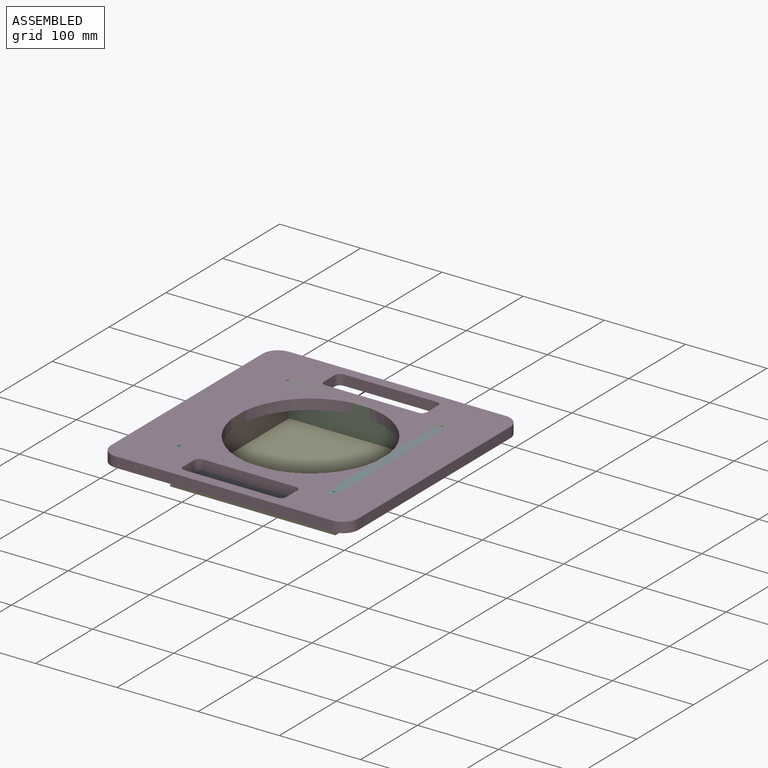
[diagram: assembled view]
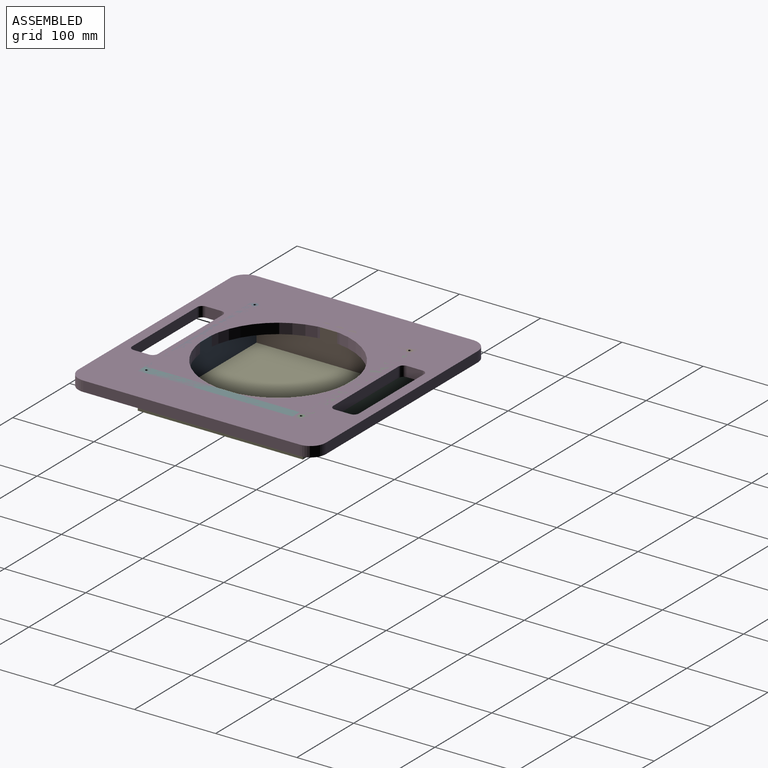
[diagram: assembled view, second angle]
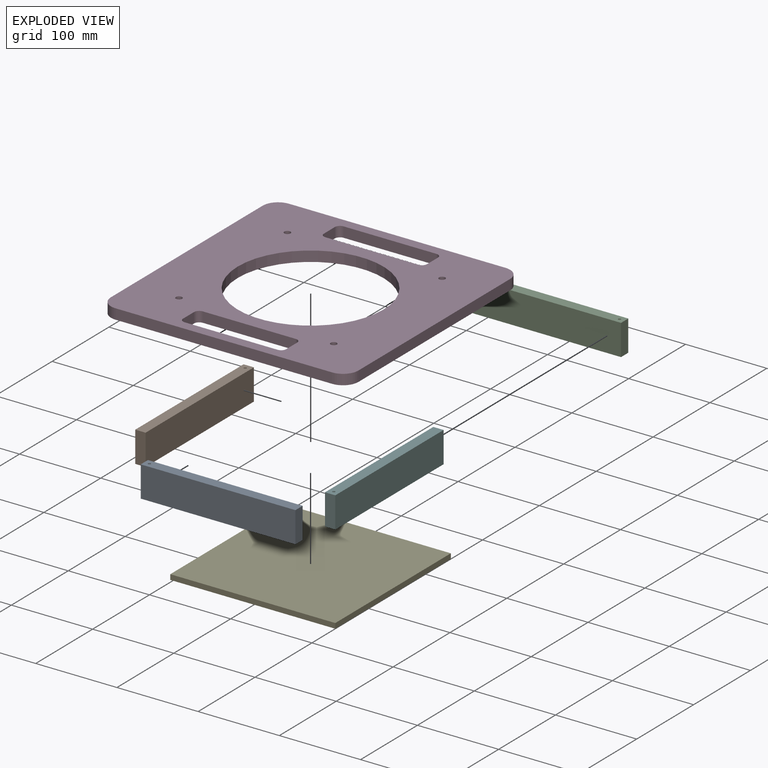
[diagram: exploded view]
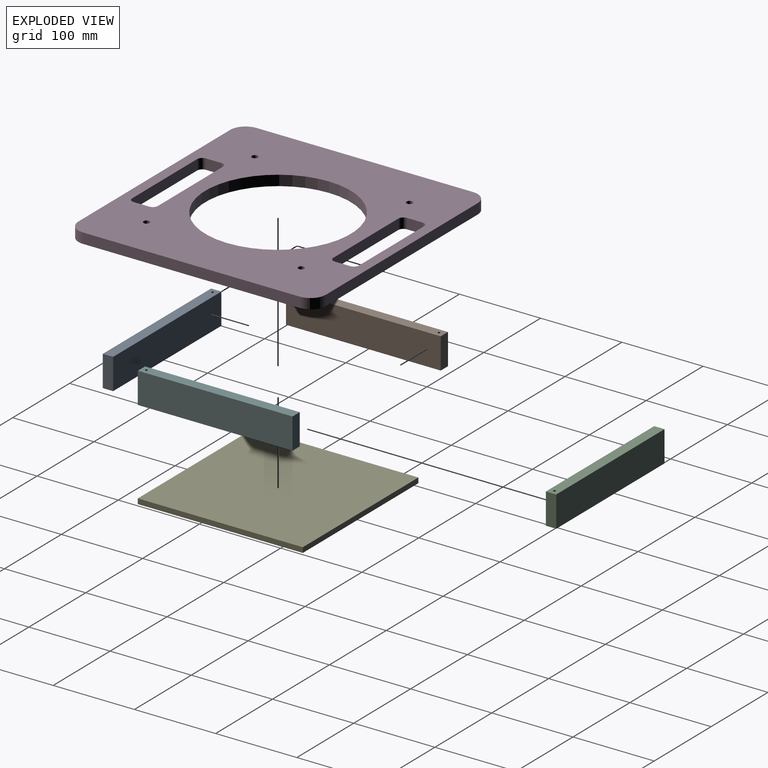
[diagram: exploded view, second angle]
ASSEMBLY  parts=6 mates=5
PART A: 7 faces, bbox 12.7x190.5x38.1 mm
  f0: plane 190.5x12.7mm, normal (0,0,1), area 2411.4mm2, adj f1,f3,f4,f5,f6
  f1: plane 38.1x12.7mm, normal (0,-1,0), area 483.9mm2, adj f0,f2,f4,f5
  f2: plane 190.5x12.7mm, normal (0,0,-1), area 2411.4mm2, adj f1,f3,f4,f5,f6
  f3: plane 38.1x12.7mm, normal (0,1,0), area 483.9mm2, adj f0,f2,f4,f5
  f4: plane 190.5x38.1mm, normal (1,0,0), area 7258mm2, adj f0,f1,f2,f3
  f5: plane 190.5x38.1mm, normal (-1,0,0), area 7258mm2, adj f0,f1,f2,f3
  f6: cylinder r=1.59mm len=38.1mm, axis (0,0,-1), area 380mm2, adj f0,f2
PART B: same geometry as A
PART C: same geometry as A
PART D: 31 faces, bbox 304.8x304.8x12.7 mm
  f0: plane 266.7x12.7mm, normal (0,1,0), area 3387.1mm2, adj f25,f26,f27,f30
  f1: plane 266.7x12.7mm, normal (-1,0,0), area 3387.1mm2, adj f25,f26,f27,f28
  f2: plane 266.7x12.7mm, normal (0,-1,0), area 3387.1mm2, adj f25,f26,f28,f29
  f3: cylinder r=6.35mm len=12.7mm, axis (0,0,-1), area 126.7mm2, adj f4,f17,f25,f26
  f4: plane 19.05x12.7mm, normal (-1,0,0), area 241.9mm2, adj f3,f5,f25,f26
  f5: cylinder r=6.35mm len=12.7mm, axis (0,0,-1), area 126.7mm2, adj f4,f6,f25,f26
  f6: plane 114.3x12.7mm, normal (0,1,0), area 1451.6mm2, adj f5,f7,f25,f26
  f7: cylinder r=6.35mm len=12.7mm, axis (0,0,-1), area 126.7mm2, adj f6,f8,f25,f26
  f8: plane 19.05x12.7mm, normal (1,0,0), area 241.9mm2, adj f7,f9,f25,f26
  f9: cylinder r=6.35mm len=12.7mm, axis (0,0,-1), area 126.7mm2, adj f8,f17,f25,f26
  f10: plane 114.3x12.7mm, normal (0,1,0), area 1451.6mm2, adj f11,f18,f25,f26
  f11: cylinder r=6.35mm len=12.7mm, axis (0,0,-1), area 126.7mm2, adj f10,f12,f25,f26
  f12: plane 19.05x12.7mm, normal (1,0,0), area 241.9mm2, adj f11,f13,f25,f26
  f13: cylinder r=6.35mm len=12.7mm, axis (0,0,-1), area 126.7mm2, adj f12,f14,f25,f26
  f14: plane 114.3x12.7mm, normal (0,-1,0), area 1451.6mm2, adj f13,f15,f25,f26
  f15: cylinder r=6.35mm len=12.7mm, axis (0,0,-1), area 126.7mm2, adj f14,f16,f25,f26
  f16: plane 19.05x12.7mm, normal (-1,0,0), area 241.9mm2, adj f15,f18,f25,f26
  f17: plane 114.3x12.7mm, normal (0,-1,0), area 1451.6mm2, adj f3,f9,f25,f26
  f18: cylinder r=6.35mm len=12.7mm, axis (0,0,-1), area 126.7mm2, adj f10,f16,f25,f26
  f19: cylinder r=89.69mm len=179.39mm, axis (0,0,-1), area 7157.2mm2, adj f25,f26
  f20: cylinder r=3.81mm len=12.7mm, axis (0,0,-1), area 304mm2, adj f25,f26
  f21: cylinder r=3.81mm len=12.7mm, axis (0,0,-1), area 304mm2, adj f25,f26
  f22: cylinder r=3.81mm len=12.7mm, axis (0,0,-1), area 304mm2, adj f25,f26
  f23: cylinder r=3.81mm len=12.7mm, axis (0,0,-1), area 304mm2, adj f25,f26
  f24: plane 266.7x12.7mm, normal (1,0,0), area 3387.1mm2, adj f25,f26,f29,f30
  f25: plane 304.8x304.8mm, normal (0,0,1), area 59139.8mm2, adj f0,f1,f2,f3,f4,f5,f6,f7
  f26: plane 304.8x304.8mm, normal (0,0,-1), area 59139.8mm2, adj f0,f1,f2,f3,f4,f5,f6,f7
  f27: cylinder r=19.05mm len=19.05mm, axis (0,0,1), area 380mm2, adj f0,f1,f25,f26
  f28: cylinder r=19.05mm len=19.05mm, axis (0,0,-1), area 380mm2, adj f1,f2,f25,f26
  f29: cylinder r=19.05mm len=19.05mm, axis (0,0,1), area 380mm2, adj f2,f24,f25,f26
  f30: cylinder r=19.05mm len=19.05mm, axis (0,0,-1), area 380mm2, adj f0,f24,f25,f26
PART E: 6 faces, bbox 203.2x203.2x6.4 mm
  f0: plane 203.2x6.35mm, normal (0,1,0), area 1290.3mm2, adj f1,f3,f4,f5
  f1: plane 203.2x6.35mm, normal (-1,0,0), area 1290.3mm2, adj f0,f2,f4,f5
  f2: plane 203.2x6.35mm, normal (0,-1,0), area 1290.3mm2, adj f1,f3,f4,f5
  f3: plane 203.2x6.35mm, normal (1,0,0), area 1290.3mm2, adj f0,f2,f4,f5
  f4: plane 203.2x203.2mm, normal (0,0,1), area 41290.2mm2, adj f0,f1,f2,f3
  f5: plane 203.2x203.2mm, normal (0,0,-1), area 41290.2mm2, adj f0,f1,f2,f3
PART F: same geometry as A
PLACE A rot(axis=(0.71,-0.71,0),180deg) t=(967.25,-157.55,-222)mm
PLACE B rot(axis=(0,-1,0),180deg) t=(917.53,-29.47,-222)mm
PLACE C rot(axis=(-0.71,-0.71,0),180deg) t=(1045.62,20.25,-222)mm
PLACE D t=(984.91,-68.65,-89.32)mm
PLACE E rot(axis=(-1,0,0),180deg) t=(891.69,-432.03,-114.72)mm
PLACE F rot(axis=(-1,0,0),180deg) t=(1095.33,-107.84,-222)mm
MATE fastened E.f1 <-> B.f4  axis (-1,0,0) through (904.83,32.95,-114.72)mm
MATE fastened A.f6 <-> D.f21  axis (0,0,1) through (911.18,-163.9,-76.62)mm
MATE fastened A.f4 <-> E.f0  axis (0,-1,0) through (904.83,-170.25,-114.72)mm
MATE fastened F.f4 <-> E.f3  axis (1,0,0) through (1108.03,-170.25,-114.72)mm
MATE fastened C.f4 <-> E.f2  axis (0,-1,0) through (1108.03,32.95,-114.72)mm
